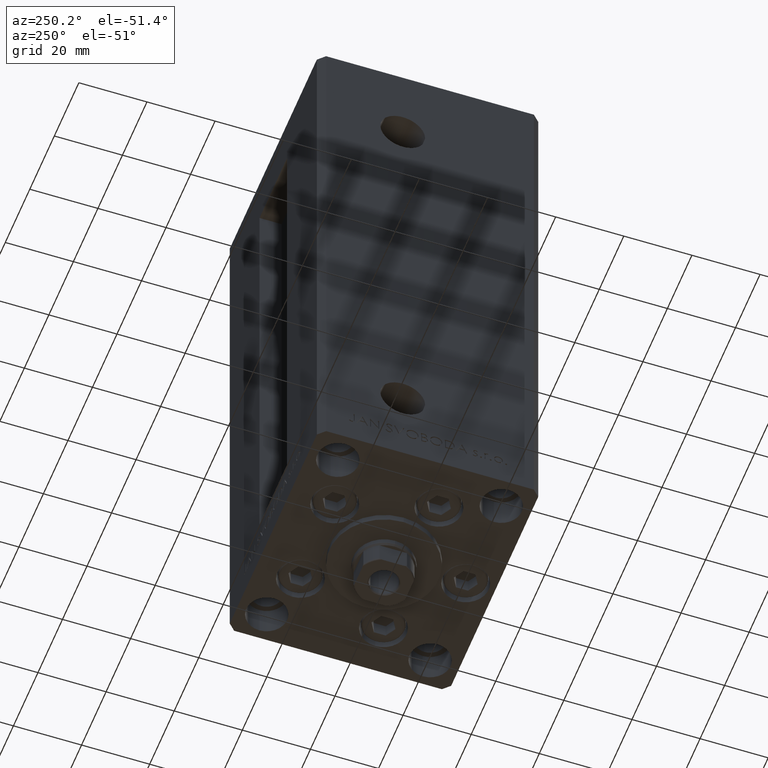
[diagram: clean part render]
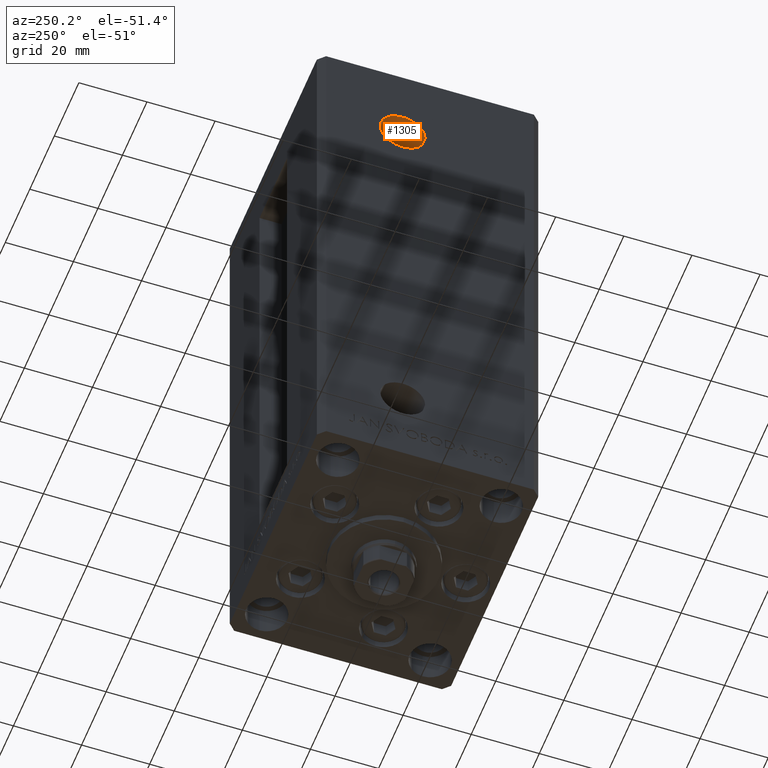
[diagram: same view with one face highlighted and labeled with its STEP entity id]
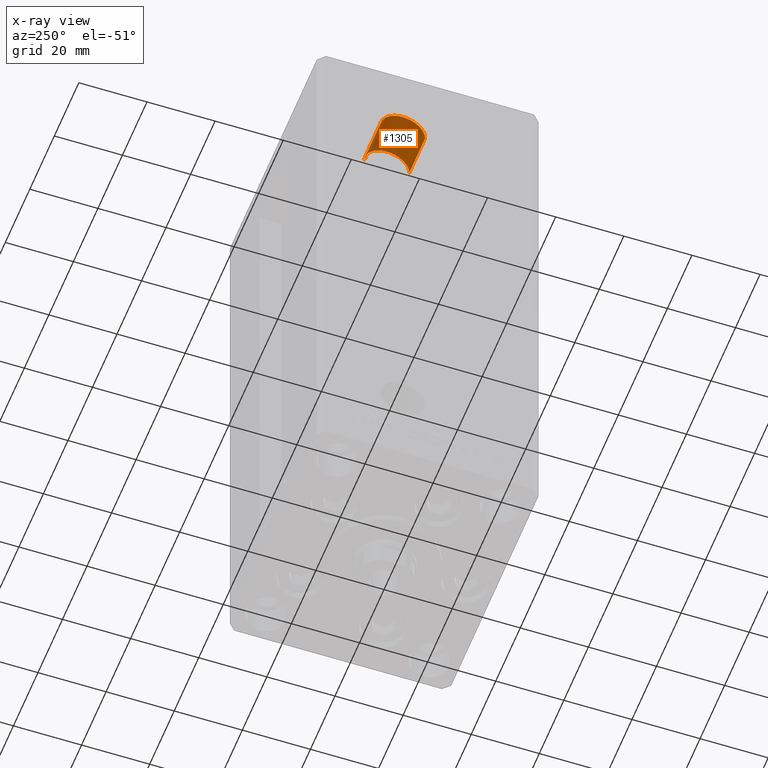
[diagram: x-ray of the same camera — body ghosted, the highlighted face saturated]
A machine part, auxiliary view. The second image highlights one B-rep face of the part: STEP entity #1305.
The next image is the same camera in x-ray: the body ghosted, the highlighted face saturated — about 9% of this face is hidden behind the body in this view.
In plain terms, the highlighted cylindrical surface (edge-blend (fillet) strip) has radius 6.58 mm, axis along (-1, -0, -0).
Its self-contained STEP definition (entity closure, byte-faithful):
#517 = FACE_OUTER_BOUND ( 'NONE', #32270, .T. ) ;
#1305 = ADVANCED_FACE ( 'NONE', ( #517 ), #26662, .F. ) ;
#6992 = EDGE_CURVE ( 'NONE', #10826, #28999, #39647, .T. ) ;
#7751 = CARTESIAN_POINT ( 'NONE',  ( -24.50000000000000000, 7.999999999999994671, 127.0000000000000000 ) ) ;
#8926 = EDGE_CURVE ( 'NONE', #29886, #10826, #26039, .T. ) ;
#9764 = AXIS2_PLACEMENT_3D ( 'NONE', #11597, #34926, #19860 ) ;
#10826 = VERTEX_POINT ( 'NONE', #16532 ) ;
#11041 = CARTESIAN_POINT ( 'NONE',  ( -37.50000000000000000, 7.999999999999991118, 127.0000000000000000 ) ) ;
#11597 = CARTESIAN_POINT ( 'NONE',  ( -24.50000000000000000, 7.999999999999994671, 127.0000000000000000 ) ) ;
#15123 = LINE ( 'NONE', #34208, #45639 ) ;
#16532 = CARTESIAN_POINT ( 'NONE',  ( -24.50000000000000000, 14.58000000000000895, 127.0000000000000000 ) ) ;
#16556 = DIRECTION ( 'NONE',  ( -1.000000000000000000, -2.275047181608927644E-16, -0.000000000000000000 ) ) ;
#17252 = ORIENTED_EDGE ( 'NONE', *, *, #8926, .F. ) ;
#17524 = EDGE_CURVE ( 'NONE', #38466, #28999, #43000, .T. ) ;
#19860 = DIRECTION ( 'NONE',  ( 0.000000000000000000, -1.000000000000000000, 0.000000000000000000 ) ) ;
#21602 = CARTESIAN_POINT ( 'NONE',  ( -37.50000000000000000, 14.58000000000000718, 127.0000000000000000 ) ) ;
#24584 = CARTESIAN_POINT ( 'NONE',  ( -24.50000000000000000, 14.58000000000000895, 127.0000000000000000 ) ) ;
#25170 = VECTOR ( 'NONE', #16556, 1000.000000000000000 ) ;
#26039 = CIRCLE ( 'NONE', #38846, 6.580000000000015170 ) ;
#26191 = DIRECTION ( 'NONE',  ( -1.000000000000000000, -2.275047181608927644E-16, -0.000000000000000000 ) ) ;
#26355 = DIRECTION ( 'NONE',  ( -1.000000000000000000, -2.275047181608927644E-16, 0.000000000000000000 ) ) ;
#26662 = CYLINDRICAL_SURFACE ( 'NONE', #9764, 6.580000000000015170 ) ;
#26672 = ORIENTED_EDGE ( 'NONE', *, *, #6992, .F. ) ;
#28726 = CARTESIAN_POINT ( 'NONE',  ( -37.50000000000000000, 1.419999999999975948, 127.0000000000000000 ) ) ;
#28999 = VERTEX_POINT ( 'NONE', #21602 ) ;
#29859 = DIRECTION ( 'NONE',  ( 0.000000000000000000, -1.000000000000000000, 0.000000000000000000 ) ) ;
#29886 = VERTEX_POINT ( 'NONE', #35225 ) ;
#30920 = ORIENTED_EDGE ( 'NONE', *, *, #17524, .T. ) ;
#32270 = EDGE_LOOP ( 'NONE', ( #26672, #17252, #39275, #30920 ) ) ;
#33620 = DIRECTION ( 'NONE',  ( -1.000000000000000000, -2.275047181608927644E-16, 0.000000000000000000 ) ) ;
#34208 = CARTESIAN_POINT ( 'NONE',  ( -24.50000000000000000, 1.419999999999979501, 127.0000000000000000 ) ) ;
#34282 = EDGE_CURVE ( 'NONE', #29886, #38466, #15123, .T. ) ;
#34926 = DIRECTION ( 'NONE',  ( -1.000000000000000000, -2.275047181608927644E-16, -0.000000000000000000 ) ) ;
#35225 = CARTESIAN_POINT ( 'NONE',  ( -24.50000000000000000, 1.419999999999979501, 127.0000000000000000 ) ) ;
#38466 = VERTEX_POINT ( 'NONE', #28726 ) ;
#38846 = AXIS2_PLACEMENT_3D ( 'NONE', #7751, #33620, #29859 ) ;
#39275 = ORIENTED_EDGE ( 'NONE', *, *, #34282, .T. ) ;
#39647 = LINE ( 'NONE', #24584, #25170 ) ;
#41909 = DIRECTION ( 'NONE',  ( 0.000000000000000000, -1.000000000000000000, 0.000000000000000000 ) ) ;
#42219 = AXIS2_PLACEMENT_3D ( 'NONE', #11041, #26355, #41909 ) ;
#43000 = CIRCLE ( 'NONE', #42219, 6.580000000000015170 ) ;
#45639 = VECTOR ( 'NONE', #26191, 1000.000000000000000 ) ;